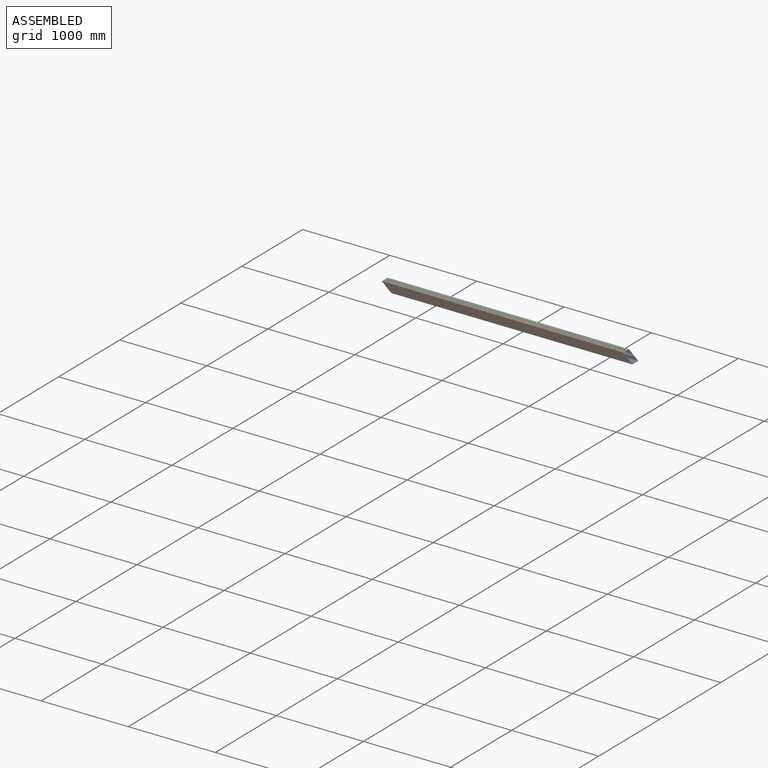
[diagram: assembled view]
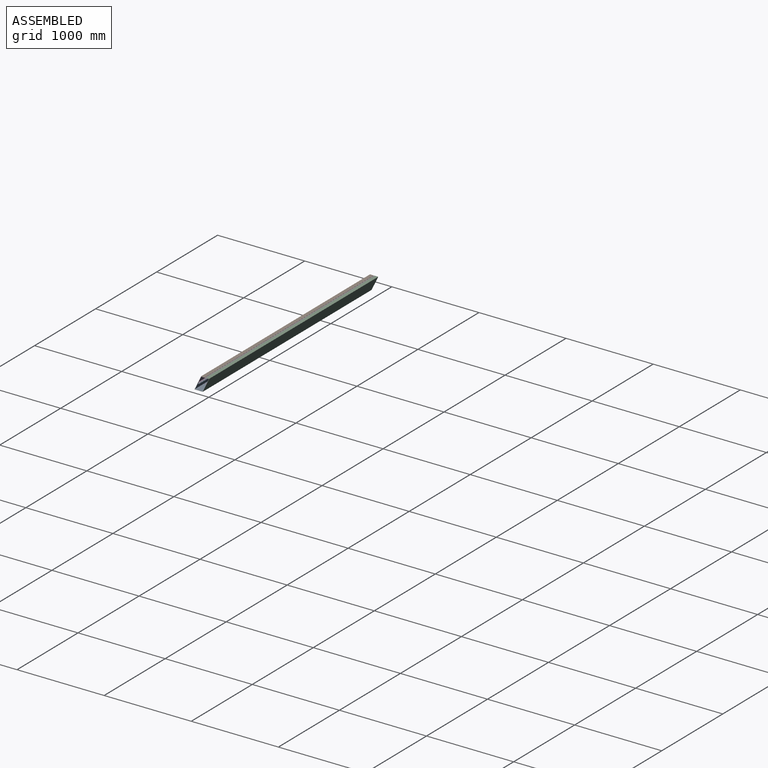
[diagram: assembled view, second angle]
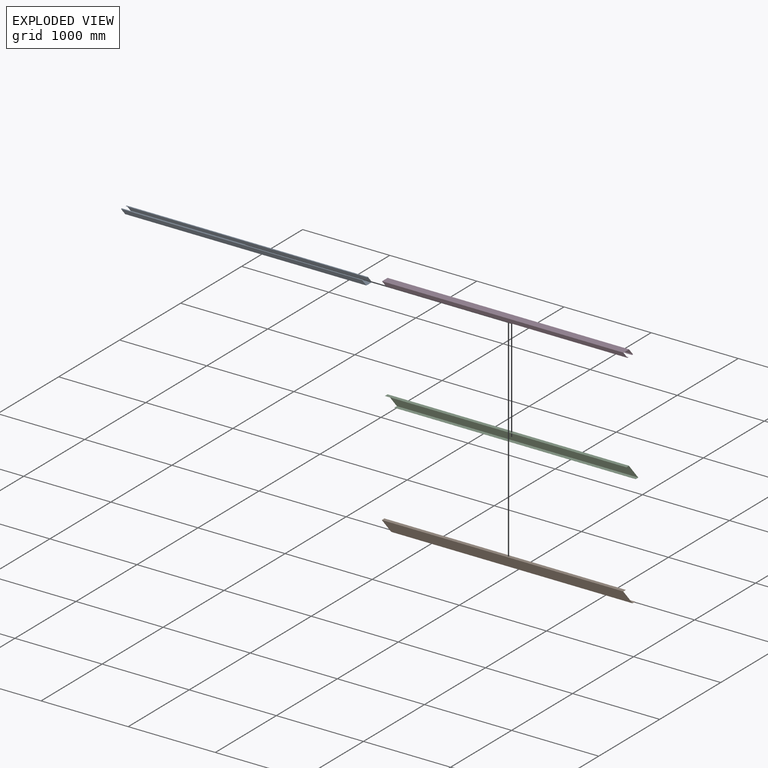
[diagram: exploded view]
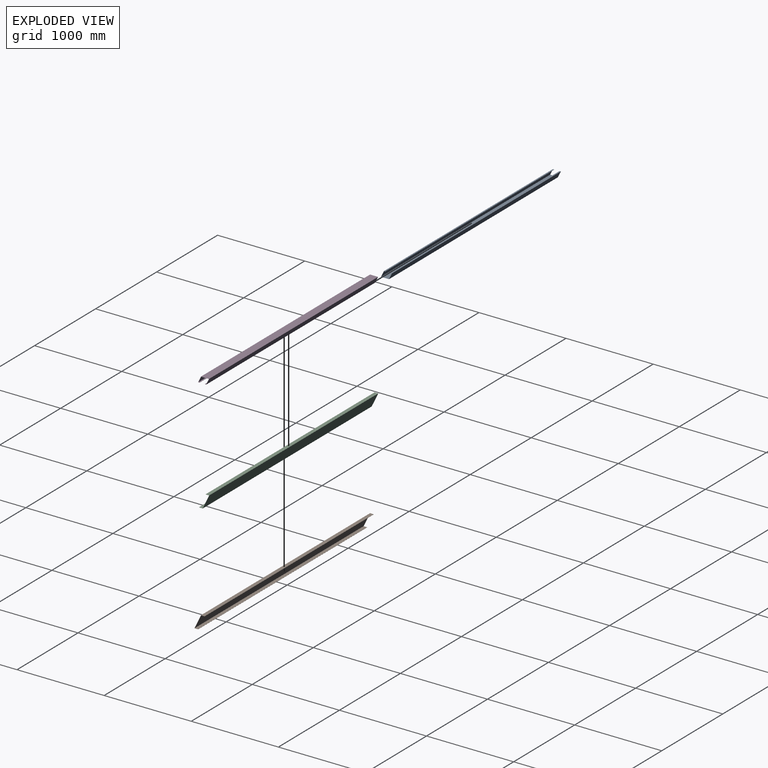
[diagram: exploded view, second angle]
ASSEMBLY  parts=4 mates=3
PART A: 14 faces, bbox 2818.1x41.3x92.1 mm
  f0: plane 2769.59x15.88mm, normal (0,1,0), area 43967.2mm2, adj f9,f11,f12,f13
  f1: plane 2769.59x92.08mm, normal (0,-1,0), area 255009.5mm2, adj f10,f11,f12,f13
  f2: plane 2769.59x15.88mm, normal (0,1,0), area 43967.2mm2, adj f3,f10,f12,f13
  f3: plane 2770.99x1.19mm, normal (0,0,1), area 3306.3mm2, adj f2,f4,f12,f13
  f4: plane 2769.59x14.68mm, normal (0,-1,0), area 40660.8mm2, adj f3,f5,f12,f13
  f5: plane 2815.25x38.89mm, normal (0,0,1), area 107702mm2, adj f4,f6,f12,f13
  f6: plane 2769.59x89.69mm, normal (0,1,0), area 248396.9mm2, adj f5,f7,f12,f13
  f7: plane 2815.25x38.89mm, normal (0,0,-1), area 107702mm2, adj f6,f8,f12,f13
  f8: plane 2769.59x14.68mm, normal (0,-1,0), area 40660.8mm2, adj f7,f9,f12,f13
  f9: plane 2770.99x1.19mm, normal (0,0,-1), area 3306.3mm2, adj f0,f8,f12,f13
  f10: plane 2818.05x41.28mm, normal (0,0,-1), area 114314.6mm2, adj f1,f2,f12,f13
  f11: plane 2818.05x41.28mm, normal (0,0,1), area 114314.6mm2, adj f0,f1,f12,f13
  f12: plane 92.08x48.47mm, normal (0.65,0.76,0), area 371.2mm2, adj f0,f1,f2,f3,f4,f5,f6,f7
  f13: plane 92.08x48.47mm, normal (-0.65,-0.76,0), area 371.2mm2, adj f0,f1,f2,f3,f4,f5,f6,f7
PART B: 10 faces, bbox 2878.3x42.5x94.5 mm
  f0: plane 2769.59x42.47mm, normal (0,0,1), area 117621mm2, adj f3,f7,f8,f9
  f1: plane 2769.59x42.47mm, normal (0,0,-1), area 117621mm2, adj f4,f7,f8,f9
  f2: plane 2769.59x41.28mm, normal (0,0,-1), area 114314.6mm2, adj f3,f6,f8,f9
  f3: plane 2770.96x1.19mm, normal (0,1,0), area 3306.3mm2, adj f0,f2,f8,f9
  f4: plane 2770.96x1.19mm, normal (0,1,0), area 3306.3mm2, adj f1,f5,f8,f9
  f5: plane 2769.59x41.28mm, normal (0,0,1), area 114314.6mm2, adj f4,f6,f8,f9
  f6: plane 2875.51x92.08mm, normal (0,1,0), area 255009.5mm2, adj f2,f5,f8,f9
  f7: plane 2878.25x94.46mm, normal (0,-1,0), area 261622.2mm2, adj f0,f1,f8,f9
  f8: plane 108.67x94.46mm, normal (0.66,0,0.75), area 322.1mm2, adj f0,f1,f2,f3,f4,f5,f6,f7
  f9: plane 108.67x94.46mm, normal (-0.66,0,-0.75), area 322.1mm2, adj f0,f1,f2,f3,f4,f5,f6,f7
PART C: 10 faces, bbox 2878.3x42.5x94.5 mm
  f0: plane 2878.25x94.46mm, normal (0,-1,0), area 261622.2mm2, adj f6,f7,f8,f9
  f1: plane 2770.96x1.19mm, normal (0,1,0), area 3306.3mm2, adj f2,f7,f8,f9
  f2: plane 2769.59x41.28mm, normal (0,0,1), area 114314.6mm2, adj f1,f3,f8,f9
  f3: plane 2875.51x92.08mm, normal (0,1,0), area 255009.5mm2, adj f2,f4,f8,f9
  f4: plane 2769.59x41.28mm, normal (0,0,-1), area 114314.6mm2, adj f3,f5,f8,f9
  f5: plane 2770.96x1.19mm, normal (0,1,0), area 3306.3mm2, adj f4,f6,f8,f9
  f6: plane 2769.59x42.47mm, normal (0,0,1), area 117621mm2, adj f0,f5,f8,f9
  f7: plane 2769.59x42.47mm, normal (0,0,-1), area 117621mm2, adj f0,f1,f8,f9
  f8: plane 108.67x94.46mm, normal (0.66,0,-0.75), area 322.1mm2, adj f0,f1,f2,f3,f4,f5,f6,f7
  f9: plane 108.67x94.46mm, normal (-0.66,0,0.75), area 322.1mm2, adj f0,f1,f2,f3,f4,f5,f6,f7
PART D: 14 faces, bbox 2818.1x41.3x92.1 mm
  f0: plane 2769.59x15.88mm, normal (0,1,0), area 43967.2mm2, adj f1,f4,f12,f13
  f1: plane 2818.05x41.28mm, normal (0,0,1), area 114314.6mm2, adj f0,f11,f12,f13
  f2: plane 2769.59x15.88mm, normal (0,1,0), area 43967.2mm2, adj f5,f6,f12,f13
  f3: plane 2769.59x14.68mm, normal (0,-1,0), area 40660.8mm2, adj f4,f10,f12,f13
  f4: plane 2770.99x1.19mm, normal (0,0,-1), area 3306.3mm2, adj f0,f3,f12,f13
  f5: plane 2818.05x41.28mm, normal (0,0,-1), area 114314.6mm2, adj f2,f11,f12,f13
  f6: plane 2770.99x1.19mm, normal (0,0,1), area 3306.3mm2, adj f2,f7,f12,f13
  f7: plane 2769.59x14.68mm, normal (0,-1,0), area 40660.8mm2, adj f6,f8,f12,f13
  f8: plane 2815.25x38.89mm, normal (0,0,1), area 107702mm2, adj f7,f9,f12,f13
  f9: plane 2769.59x89.69mm, normal (0,1,0), area 248396.9mm2, adj f8,f10,f12,f13
  f10: plane 2815.25x38.89mm, normal (0,0,-1), area 107702mm2, adj f3,f9,f12,f13
  f11: plane 2769.59x92.08mm, normal (0,-1,0), area 255009.5mm2, adj f1,f5,f12,f13
  f12: plane 92.08x48.47mm, normal (-0.65,0.76,0), area 371.2mm2, adj f0,f1,f2,f3,f4,f5,f6,f7
  f13: plane 92.08x48.47mm, normal (0.65,-0.76,0), area 371.2mm2, adj f0,f1,f2,f3,f4,f5,f6,f7
PLACE A rot(axis=(1,0,0),90deg) t=(-515.31,-663.28,-377.84)mm
PLACE B t=(-513.94,-21.51,-339.15)mm
PLACE C rot(axis=(-1,0,0),180deg) t=(-513.94,-102.57,-339.91)mm
PLACE D rot(axis=(-1,0,0),90deg) t=(-512.57,867.4,-106.08)mm
MATE fastened D.f11 <-> C.f2  axis (0,0,1) through (2257.02,-15.03,-137.11)mm
MATE fastened C.f3 <-> A.f10  axis (0,-1,0) through (2362.94,-15.03,-229.18)mm
MATE fastened A.f1 <-> B.f5  axis (0,0,-1) through (2362.94,-107.1,-229.18)mm
